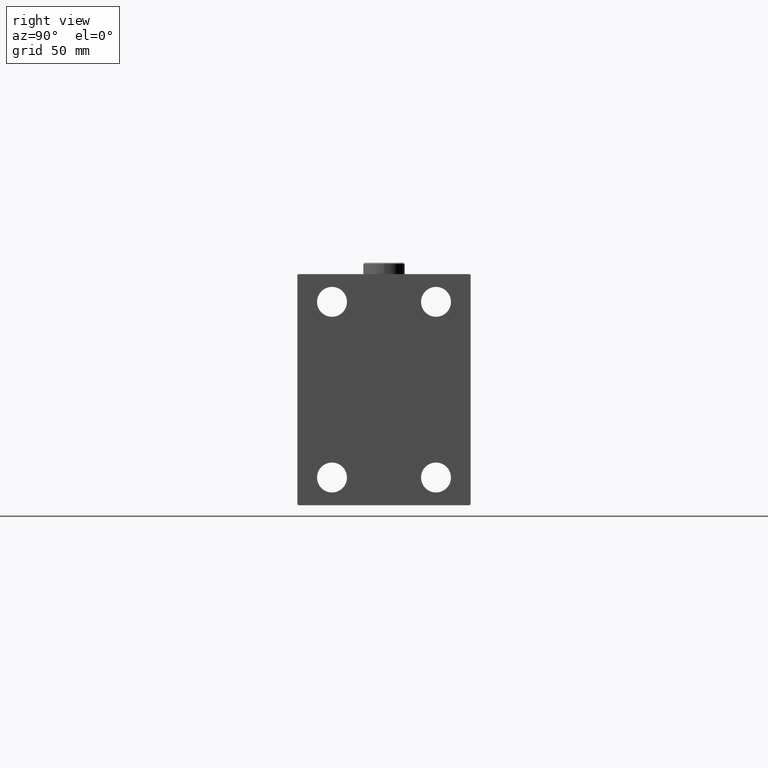
[diagram: clean part render]
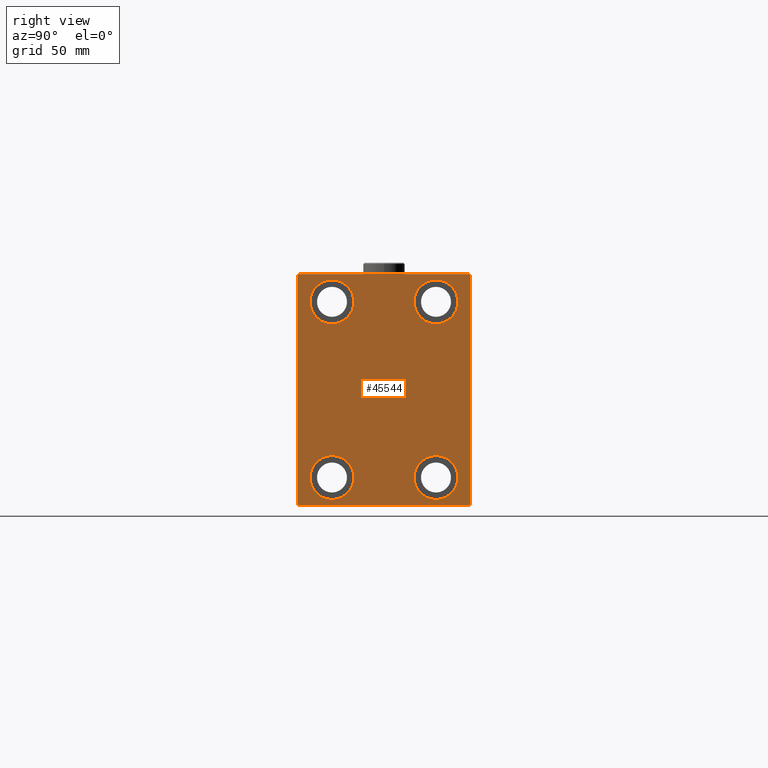
[diagram: same view with one face highlighted and labeled with its STEP entity id]
A machine part, right view. The second image highlights one B-rep face of the part: STEP entity #45544.
In plain terms, the highlighted planar face has unit normal (1, 0, 0).
Its self-contained STEP definition (entity closure, byte-faithful):
#346 = CARTESIAN_POINT ( 'NONE',  ( 193.0000000000000000, -22.49999999999999645, 28.49999999999998934 ) ) ;
#479 = VECTOR ( 'NONE', #43547, 1000.000000000000000 ) ;
#733 = EDGE_CURVE ( 'NONE', #27768, #14748, #44067, .T. ) ;
#1138 = DIRECTION ( 'NONE',  ( 0.000000000000000000, 0.000000000000000000, 1.000000000000000000 ) ) ;
#1288 = DIRECTION ( 'NONE',  ( -1.000000000000000000, -0.000000000000000000, -0.000000000000000000 ) ) ;
#1367 = CARTESIAN_POINT ( 'NONE',  ( 193.0000000000000000, -37.00000000000000711, -50.00000000000000711 ) ) ;
#1388 = VECTOR ( 'NONE', #47253, 1000.000000000000000 ) ;
#1925 = ORIENTED_EDGE ( 'NONE', *, *, #17944, .T. ) ;
#1949 = DIRECTION ( 'NONE',  ( 0.000000000000000000, 0.000000000000000000, 1.000000000000000000 ) ) ;
#2194 = DIRECTION ( 'NONE',  ( -1.000000000000000000, -0.000000000000000000, -0.000000000000000000 ) ) ;
#2653 = FACE_BOUND ( 'NONE', #41099, .T. ) ;
#2928 = CARTESIAN_POINT ( 'NONE',  ( 193.0000000000000000, 37.50000000000000711, -50.00000000000000000 ) ) ;
#2952 = DIRECTION ( 'NONE',  ( 0.000000000000000000, -1.000000000000000000, -1.850371707708594316E-16 ) ) ;
#4500 = VERTEX_POINT ( 'NONE', #1367 ) ;
#4579 = LINE ( 'NONE', #38639, #14055 ) ;
#5382 = CIRCLE ( 'NONE', #44267, 9.500000000000001776 ) ;
#5494 = CARTESIAN_POINT ( 'NONE',  ( 193.0000000000000000, 37.50000000000000711, -49.50000000000000000 ) ) ;
#5507 = DIRECTION ( 'NONE',  ( -0.000000000000000000, 0.7071067811865474617, -0.7071067811865474617 ) ) ;
#5710 = EDGE_CURVE ( 'NONE', #13961, #14193, #38341, .T. ) ;
#5744 = VERTEX_POINT ( 'NONE', #24440 ) ;
#6187 = CIRCLE ( 'NONE', #23294, 9.500000000000001776 ) ;
#6490 = CARTESIAN_POINT ( 'NONE',  ( 193.0000000000000000, 22.50000000000000355, 37.99999999999999289 ) ) ;
#6729 = CARTESIAN_POINT ( 'NONE',  ( 193.0000000000000000, -22.50000000000000711, -28.49999999999998934 ) ) ;
#7169 = CIRCLE ( 'NONE', #29726, 9.500000000000001776 ) ;
#7178 = EDGE_CURVE ( 'NONE', #7204, #5744, #25589, .T. ) ;
#7189 = CARTESIAN_POINT ( 'NONE',  ( 193.0000000000000000, -43.49999999999998579, 43.49999999999998579 ) ) ;
#7204 = VERTEX_POINT ( 'NONE', #10265 ) ;
#7298 = DIRECTION ( 'NONE',  ( -1.000000000000000000, -0.000000000000000000, -0.000000000000000000 ) ) ;
#7438 = CARTESIAN_POINT ( 'NONE',  ( 193.0000000000000000, 22.49999999999999645, -28.49999999999998934 ) ) ;
#9299 = AXIS2_PLACEMENT_3D ( 'NONE', #13615, #13854, #28698 ) ;
#9488 = EDGE_CURVE ( 'NONE', #14748, #27768, #16898, .T. ) ;
#9533 = ORIENTED_EDGE ( 'NONE', *, *, #36392, .T. ) ;
#9747 = CARTESIAN_POINT ( 'NONE',  ( 193.0000000000000000, -22.50000000000000711, -37.99999999999999289 ) ) ;
#10265 = CARTESIAN_POINT ( 'NONE',  ( 193.0000000000000000, 36.99999999999999289, 50.00000000000000711 ) ) ;
#10639 = CARTESIAN_POINT ( 'NONE',  ( 193.0000000000000000, 22.50000000000000355, 47.49999999999999289 ) ) ;
#10698 = EDGE_CURVE ( 'NONE', #14193, #29400, #38541, .T. ) ;
#11108 = DIRECTION ( 'NONE',  ( 0.000000000000000000, 0.000000000000000000, 1.000000000000000000 ) ) ;
#11200 = VECTOR ( 'NONE', #26890, 1000.000000000000114 ) ;
#11474 = CIRCLE ( 'NONE', #38661, 9.500000000000001776 ) ;
#12050 = CARTESIAN_POINT ( 'NONE',  ( 193.0000000000000000, 43.50000000000000711, -43.50000000000000711 ) ) ;
#12149 = CARTESIAN_POINT ( 'NONE',  ( 193.0000000000000000, 37.49999999999999289, 49.50000000000000000 ) ) ;
#12809 = CARTESIAN_POINT ( 'NONE',  ( 193.0000000000000000, 22.49999999999999645, -37.99999999999999289 ) ) ;
#12894 = EDGE_CURVE ( 'NONE', #22633, #22461, #30208, .T. ) ;
#13052 = DIRECTION ( 'NONE',  ( 0.000000000000000000, 0.000000000000000000, 1.000000000000000000 ) ) ;
#13113 = CARTESIAN_POINT ( 'NONE',  ( 193.0000000000000000, 37.00000000000000711, -50.00000000000000000 ) ) ;
#13615 = CARTESIAN_POINT ( 'NONE',  ( 193.0000000000000000, 0.000000000000000000, 0.000000000000000000 ) ) ;
#13854 = DIRECTION ( 'NONE',  ( 1.000000000000000000, 0.000000000000000000, 0.000000000000000000 ) ) ;
#13961 = VERTEX_POINT ( 'NONE', #13113 ) ;
#14055 = VECTOR ( 'NONE', #45482, 1000.000000000000000 ) ;
#14193 = VERTEX_POINT ( 'NONE', #5494 ) ;
#14210 = EDGE_CURVE ( 'NONE', #32899, #32732, #5382, .T. ) ;
#14664 = CARTESIAN_POINT ( 'NONE',  ( 193.0000000000000000, 22.50000000000000355, 37.99999999999999289 ) ) ;
#14748 = VERTEX_POINT ( 'NONE', #10639 ) ;
#15863 = VERTEX_POINT ( 'NONE', #346 ) ;
#15994 = CARTESIAN_POINT ( 'NONE',  ( 193.0000000000000000, -22.50000000000000711, -37.99999999999999289 ) ) ;
#16008 = EDGE_CURVE ( 'NONE', #25770, #15863, #6187, .T. ) ;
#16105 = VECTOR ( 'NONE', #5507, 1000.000000000000114 ) ;
#16388 = ORIENTED_EDGE ( 'NONE', *, *, #12894, .T. ) ;
#16470 = CARTESIAN_POINT ( 'NONE',  ( 193.0000000000000000, -43.50000000000000711, -43.50000000000000711 ) ) ;
#16898 = CIRCLE ( 'NONE', #33991, 9.500000000000001776 ) ;
#17513 = FACE_OUTER_BOUND ( 'NONE', #40825, .T. ) ;
#17944 = EDGE_CURVE ( 'NONE', #30292, #20938, #4579, .T. ) ;
#17992 = LINE ( 'NONE', #18235, #479 ) ;
#18235 = CARTESIAN_POINT ( 'NONE',  ( 193.0000000000000000, -37.50000000000000711, -50.00000000000000711 ) ) ;
#19499 = ORIENTED_EDGE ( 'NONE', *, *, #9488, .T. ) ;
#19988 = ORIENTED_EDGE ( 'NONE', *, *, #37575, .T. ) ;
#20691 = ORIENTED_EDGE ( 'NONE', *, *, #733, .T. ) ;
#20847 = LINE ( 'NONE', #16470, #16105 ) ;
#20938 = VERTEX_POINT ( 'NONE', #25580 ) ;
#21287 = EDGE_CURVE ( 'NONE', #22461, #22633, #24919, .T. ) ;
#21400 = PLANE ( 'NONE',  #9299 ) ;
#22461 = VERTEX_POINT ( 'NONE', #6729 ) ;
#22633 = VERTEX_POINT ( 'NONE', #25625 ) ;
#22982 = DIRECTION ( 'NONE',  ( 0.000000000000000000, 0.000000000000000000, 1.000000000000000000 ) ) ;
#23066 = AXIS2_PLACEMENT_3D ( 'NONE', #6490, #40336, #25229 ) ;
#23294 = AXIS2_PLACEMENT_3D ( 'NONE', #40655, #7298, #37232 ) ;
#23305 = DIRECTION ( 'NONE',  ( -1.000000000000000000, -0.000000000000000000, -0.000000000000000000 ) ) ;
#24440 = CARTESIAN_POINT ( 'NONE',  ( 193.0000000000000000, -36.99999999999997868, 49.99999999999999289 ) ) ;
#24602 = VECTOR ( 'NONE', #2952, 1000.000000000000000 ) ;
#24919 = CIRCLE ( 'NONE', #37371, 9.500000000000001776 ) ;
#25229 = DIRECTION ( 'NONE',  ( 0.000000000000000000, 0.000000000000000000, 1.000000000000000000 ) ) ;
#25580 = CARTESIAN_POINT ( 'NONE',  ( 193.0000000000000000, -37.50000000000000711, -49.50000000000000711 ) ) ;
#25589 = LINE ( 'NONE', #32387, #24602 ) ;
#25625 = CARTESIAN_POINT ( 'NONE',  ( 193.0000000000000000, -22.50000000000000711, -47.49999999999999289 ) ) ;
#25770 = VERTEX_POINT ( 'NONE', #37658 ) ;
#25915 = EDGE_CURVE ( 'NONE', #5744, #30292, #40540, .T. ) ;
#26035 = EDGE_CURVE ( 'NONE', #32732, #32899, #7169, .T. ) ;
#26314 = ORIENTED_EDGE ( 'NONE', *, *, #36577, .T. ) ;
#26320 = ORIENTED_EDGE ( 'NONE', *, *, #10698, .T. ) ;
#26890 = DIRECTION ( 'NONE',  ( -0.000000000000000000, 0.7071067811865474617, 0.7071067811865474617 ) ) ;
#27376 = VECTOR ( 'NONE', #43944, 1000.000000000000114 ) ;
#27640 = DIRECTION ( 'NONE',  ( -1.000000000000000000, -0.000000000000000000, -0.000000000000000000 ) ) ;
#27768 = VERTEX_POINT ( 'NONE', #42483 ) ;
#28698 = DIRECTION ( 'NONE',  ( 0.000000000000000000, 0.000000000000000000, -1.000000000000000000 ) ) ;
#29346 = DIRECTION ( 'NONE',  ( -1.000000000000000000, -0.000000000000000000, -0.000000000000000000 ) ) ;
#29400 = VERTEX_POINT ( 'NONE', #12149 ) ;
#29726 = AXIS2_PLACEMENT_3D ( 'NONE', #38784, #1288, #22982 ) ;
#30208 = CIRCLE ( 'NONE', #42655, 9.500000000000001776 ) ;
#30292 = VERTEX_POINT ( 'NONE', #46048 ) ;
#30366 = CARTESIAN_POINT ( 'NONE',  ( 193.0000000000000000, 22.49999999999999645, -47.49999999999999289 ) ) ;
#31248 = ORIENTED_EDGE ( 'NONE', *, *, #16008, .T. ) ;
#32264 = CARTESIAN_POINT ( 'NONE',  ( 193.0000000000000000, -22.49999999999999645, 37.99999999999999289 ) ) ;
#32387 = CARTESIAN_POINT ( 'NONE',  ( 193.0000000000000000, 37.49999999999999289, 50.00000000000000711 ) ) ;
#32577 = FACE_BOUND ( 'NONE', #37577, .T. ) ;
#32732 = VERTEX_POINT ( 'NONE', #30366 ) ;
#32899 = VERTEX_POINT ( 'NONE', #7438 ) ;
#33727 = ORIENTED_EDGE ( 'NONE', *, *, #14210, .T. ) ;
#33777 = EDGE_LOOP ( 'NONE', ( #20691, #19499 ) ) ;
#33991 = AXIS2_PLACEMENT_3D ( 'NONE', #14664, #47787, #40476 ) ;
#35457 = VECTOR ( 'NONE', #43312, 999.9999999999998863 ) ;
#35761 = CARTESIAN_POINT ( 'NONE',  ( 193.0000000000000000, 43.50000000000026290, 43.49999999999965894 ) ) ;
#35998 = LINE ( 'NONE', #35761, #35457 ) ;
#36295 = EDGE_CURVE ( 'NONE', #4500, #13961, #17992, .T. ) ;
#36392 = EDGE_CURVE ( 'NONE', #20938, #4500, #20847, .T. ) ;
#36577 = EDGE_CURVE ( 'NONE', #15863, #25770, #11474, .T. ) ;
#36599 = ORIENTED_EDGE ( 'NONE', *, *, #5710, .T. ) ;
#36845 = ORIENTED_EDGE ( 'NONE', *, *, #7178, .T. ) ;
#37232 = DIRECTION ( 'NONE',  ( 0.000000000000000000, 0.000000000000000000, 1.000000000000000000 ) ) ;
#37371 = AXIS2_PLACEMENT_3D ( 'NONE', #15994, #23305, #1138 ) ;
#37575 = EDGE_CURVE ( 'NONE', #29400, #7204, #35998, .T. ) ;
#37577 = EDGE_LOOP ( 'NONE', ( #43366, #33727 ) ) ;
#37658 = CARTESIAN_POINT ( 'NONE',  ( 193.0000000000000000, -22.49999999999999645, 47.49999999999999289 ) ) ;
#38341 = LINE ( 'NONE', #12050, #11200 ) ;
#38541 = LINE ( 'NONE', #2928, #1388 ) ;
#38639 = CARTESIAN_POINT ( 'NONE',  ( 193.0000000000000000, -37.50000000000000711, 49.99999999999999289 ) ) ;
#38661 = AXIS2_PLACEMENT_3D ( 'NONE', #32264, #29346, #11108 ) ;
#38784 = CARTESIAN_POINT ( 'NONE',  ( 193.0000000000000000, 22.49999999999999645, -37.99999999999999289 ) ) ;
#40020 = EDGE_LOOP ( 'NONE', ( #16388, #43404 ) ) ;
#40336 = DIRECTION ( 'NONE',  ( -1.000000000000000000, -0.000000000000000000, -0.000000000000000000 ) ) ;
#40476 = DIRECTION ( 'NONE',  ( 0.000000000000000000, 0.000000000000000000, 1.000000000000000000 ) ) ;
#40540 = LINE ( 'NONE', #7189, #27376 ) ;
#40655 = CARTESIAN_POINT ( 'NONE',  ( 193.0000000000000000, -22.49999999999999645, 37.99999999999999289 ) ) ;
#40825 = EDGE_LOOP ( 'NONE', ( #36845, #43159, #1925, #9533, #43873, #36599, #26320, #19988 ) ) ;
#41099 = EDGE_LOOP ( 'NONE', ( #26314, #31248 ) ) ;
#42483 = CARTESIAN_POINT ( 'NONE',  ( 193.0000000000000000, 22.50000000000000355, 28.49999999999998934 ) ) ;
#42655 = AXIS2_PLACEMENT_3D ( 'NONE', #9747, #2194, #1949 ) ;
#43159 = ORIENTED_EDGE ( 'NONE', *, *, #25915, .T. ) ;
#43312 = DIRECTION ( 'NONE',  ( -0.000000000000000000, -0.7071067811865425767, 0.7071067811865525687 ) ) ;
#43366 = ORIENTED_EDGE ( 'NONE', *, *, #26035, .T. ) ;
#43404 = ORIENTED_EDGE ( 'NONE', *, *, #21287, .T. ) ;
#43547 = DIRECTION ( 'NONE',  ( 0.000000000000000000, 1.000000000000000000, 9.251858538542970348E-17 ) ) ;
#43803 = FACE_BOUND ( 'NONE', #33777, .T. ) ;
#43873 = ORIENTED_EDGE ( 'NONE', *, *, #36295, .T. ) ;
#43944 = DIRECTION ( 'NONE',  ( 0.000000000000000000, -0.7071067811865474617, -0.7071067811865474617 ) ) ;
#44067 = CIRCLE ( 'NONE', #23066, 9.500000000000001776 ) ;
#44267 = AXIS2_PLACEMENT_3D ( 'NONE', #12809, #27640, #13052 ) ;
#45482 = DIRECTION ( 'NONE',  ( 0.000000000000000000, 0.000000000000000000, -1.000000000000000000 ) ) ;
#45544 = ADVANCED_FACE ( 'NONE', ( #32577, #2653, #43803, #46984, #17513 ), #21400, .T. ) ;
#46048 = CARTESIAN_POINT ( 'NONE',  ( 193.0000000000000000, -37.50000000000000711, 49.49999999999996447 ) ) ;
#46984 = FACE_BOUND ( 'NONE', #40020, .T. ) ;
#47253 = DIRECTION ( 'NONE',  ( 0.000000000000000000, -1.387778780781445676E-16, 1.000000000000000000 ) ) ;
#47787 = DIRECTION ( 'NONE',  ( -1.000000000000000000, -0.000000000000000000, -0.000000000000000000 ) ) ;